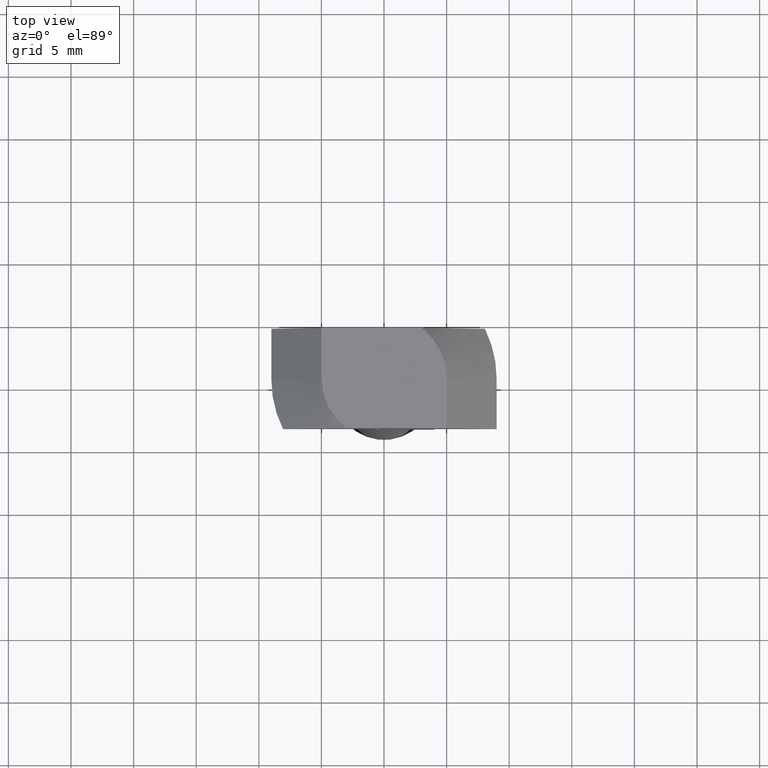
[diagram: clean part render]
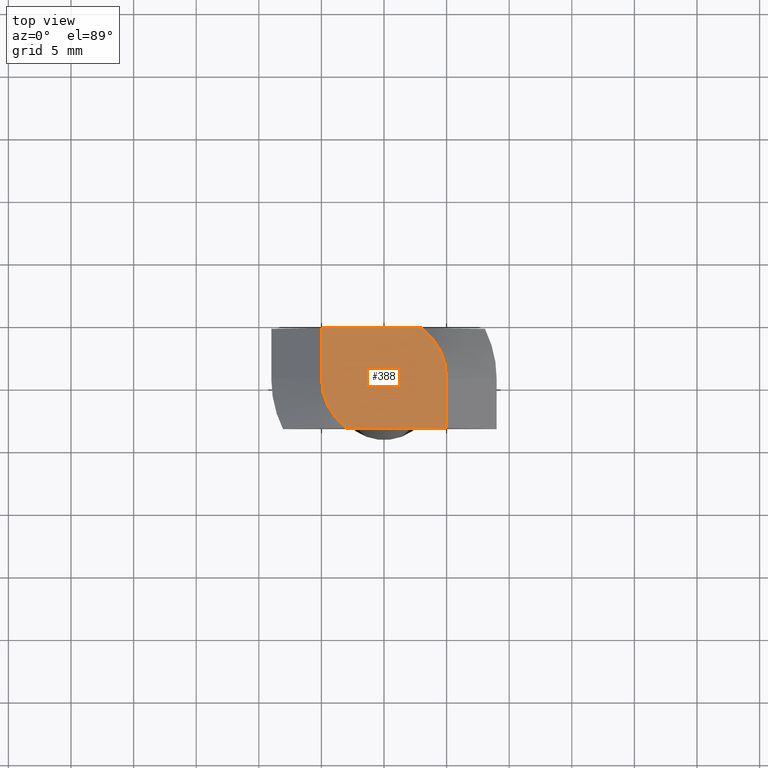
[diagram: same view with one face highlighted and labeled with its STEP entity id]
A machine part, top view. The second image highlights one B-rep face of the part: STEP entity #388.
In plain terms, the highlighted planar face has unit normal (0, 0, 1).
Its self-contained STEP definition (entity closure, byte-faithful):
#43=LINE('',#641,#77);
#47=LINE('',#649,#81);
#49=LINE('',#652,#83);
#50=LINE('',#654,#84);
#77=VECTOR('',#524,4.);
#81=VECTOR('',#532,4.);
#83=VECTOR('',#536,8.);
#84=VECTOR('',#539,8.00000000000001);
#96=PLANE('',#428);
#130=FACE_OUTER_BOUND('',#158,.T.);
#158=EDGE_LOOP('',(#347,#348,#349,#350,#351,#352));
#171=CIRCLE('',#416,5.);
#174=CIRCLE('',#422,5.);
#198=VERTEX_POINT('',#608);
#200=VERTEX_POINT('',#613);
#204=VERTEX_POINT('',#628);
#205=VERTEX_POINT('',#632);
#207=VERTEX_POINT('',#640);
#209=VERTEX_POINT('',#648);
#240=EDGE_CURVE('',#200,#198,#171,.T.);
#249=EDGE_CURVE('',#205,#204,#174,.T.);
#253=EDGE_CURVE('',#200,#207,#43,.T.);
#257=EDGE_CURVE('',#209,#205,#47,.T.);
#259=EDGE_CURVE('',#207,#204,#49,.T.);
#260=EDGE_CURVE('',#209,#198,#50,.T.);
#347=ORIENTED_EDGE('',*,*,#240,.T.);
#348=ORIENTED_EDGE('',*,*,#260,.F.);
#349=ORIENTED_EDGE('',*,*,#257,.T.);
#350=ORIENTED_EDGE('',*,*,#249,.T.);
#351=ORIENTED_EDGE('',*,*,#259,.F.);
#352=ORIENTED_EDGE('',*,*,#253,.F.);
#388=ADVANCED_FACE('',(#130),#96,.T.);
#416=AXIS2_PLACEMENT_3D('',#614,#498,#499);
#422=AXIS2_PLACEMENT_3D('',#633,#515,#516);
#428=AXIS2_PLACEMENT_3D('',#653,#537,#538);
#498=DIRECTION('center_axis',(2.04289535270664E-17,0.,1.));
#499=DIRECTION('ref_axis',(1.,0.,0.));
#515=DIRECTION('center_axis',(2.04289535270664E-17,0.,1.));
#516=DIRECTION('ref_axis',(-1.,0.,0.));
#524=DIRECTION('',(0.,-1.,0.));
#532=DIRECTION('',(0.,-1.,0.));
#536=DIRECTION('',(-1.,0.,2.04289535270664E-17));
#537=DIRECTION('center_axis',(2.04289535270664E-17,0.,1.));
#538=DIRECTION('ref_axis',(1.,0.,-2.04289535270664E-17));
#539=DIRECTION('',(1.,0.,-2.04289535270664E-17));
#608=CARTESIAN_POINT('',(3.,4.,0.));
#613=CARTESIAN_POINT('',(5.,0.,0.));
#614=CARTESIAN_POINT('Origin',(0.,0.,2.77555756156289E-16));
#628=CARTESIAN_POINT('',(-3.,-4.,0.));
#632=CARTESIAN_POINT('',(-5.,0.,0.));
#633=CARTESIAN_POINT('Origin',(0.,0.,2.77555756156289E-16));
#640=CARTESIAN_POINT('',(5.,-4.,0.));
#641=CARTESIAN_POINT('',(5.,0.,1.96261524244674E-16));
#648=CARTESIAN_POINT('',(-5.,4.,0.));
#649=CARTESIAN_POINT('',(-5.,0.,4.00551059515339E-16));
#652=CARTESIAN_POINT('',(5.,-4.,1.96261524244674E-16));
#653=CARTESIAN_POINT('Origin',(-5.,0.,4.00551059515339E-16));
#654=CARTESIAN_POINT('',(5.,4.,1.96261524244674E-16));